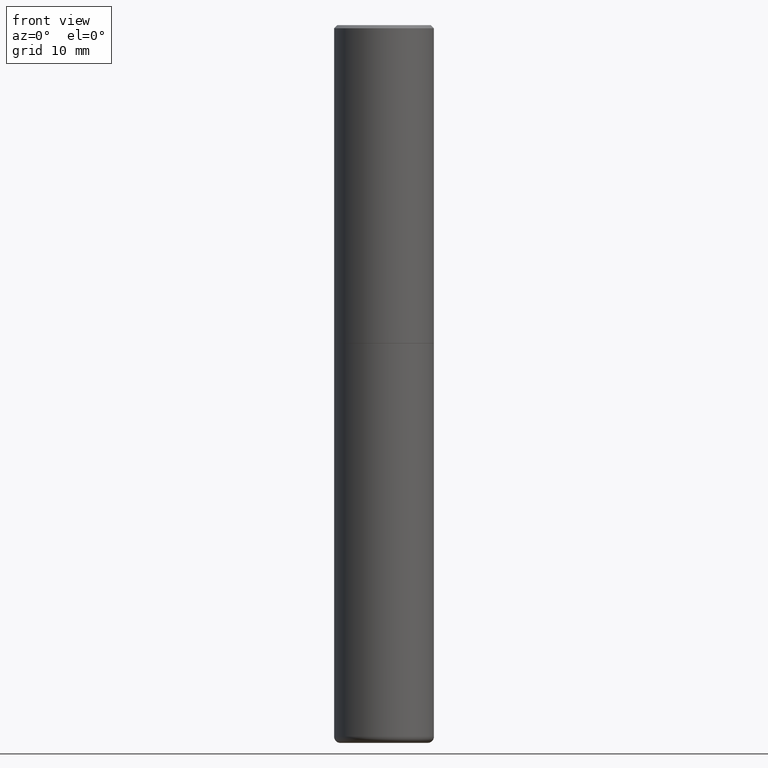
[diagram: clean part render]
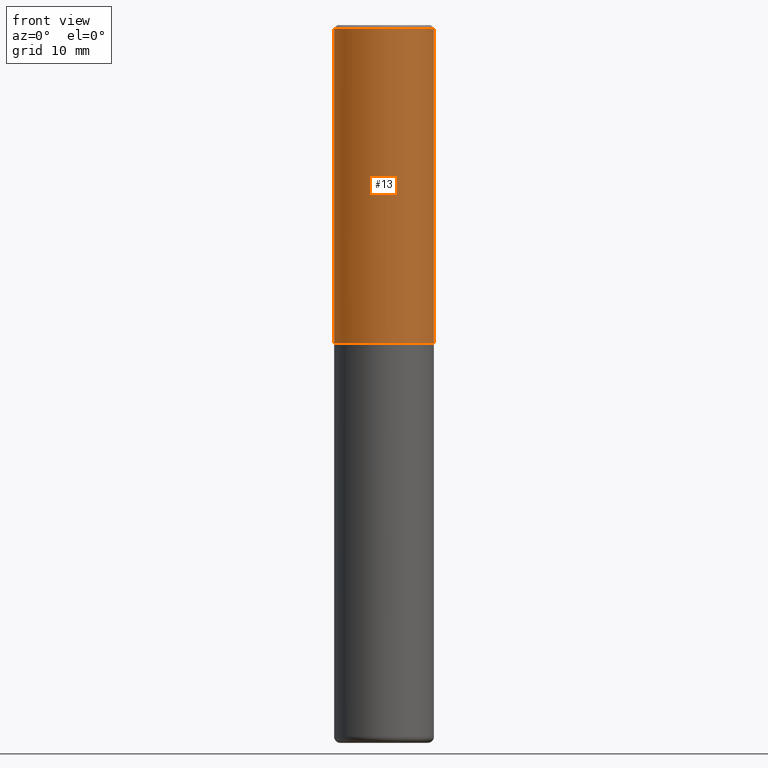
[diagram: same view with one face highlighted and labeled with its STEP entity id]
A machine part, front view. The second image highlights one B-rep face of the part: STEP entity #13.
In plain terms, the highlighted cylindrical surface (partial cylindrical patch) has radius 7.9997 mm, axis along (-0, 0, 1).
Its self-contained STEP definition (entity closure, byte-faithful):
#4 = DIRECTION ( 'NONE',  ( 1.000000000000000000, -6.982962677686265922E-15, 0.000000000000000000 ) ) ;
#8 = EDGE_CURVE ( 'NONE', #146, #207, #82, .T. ) ;
#13 = ADVANCED_FACE ( 'NONE', ( #186 ), #164, .T. ) ;
#34 = DIRECTION ( 'NONE',  ( -2.445468806185136597E-29, 3.491481338843145583E-15, 1.000000000000000000 ) ) ;
#36 = EDGE_LOOP ( 'NONE', ( #43, #205, #403, #285 ) ) ;
#40 = EDGE_CURVE ( 'NONE', #53, #216, #125, .T. ) ;
#43 = ORIENTED_EDGE ( 'NONE', *, *, #40, .F. ) ;
#53 = VERTEX_POINT ( 'NONE', #55 ) ;
#55 = CARTESIAN_POINT ( 'NONE',  ( -0.3149500000000002853, -1.300587416574145677E-15, -2.006899999999999906 ) ) ;
#62 = CARTESIAN_POINT ( 'NONE',  ( 4.890937612370289799E-31, -6.982962677686315028E-17, -0.02000000000000006981 ) ) ;
#82 = LINE ( 'NONE', #220, #211 ) ;
#117 = AXIS2_PLACEMENT_3D ( 'NONE', #253, #183, #389 ) ;
#125 = LINE ( 'NONE', #128, #404 ) ;
#128 = CARTESIAN_POINT ( 'NONE',  ( -0.3149500000000000632, 2.237854346276435985E-15, -1.549218606675782956E-29 ) ) ;
#138 = EDGE_CURVE ( 'NONE', #53, #146, #314, .T. ) ;
#146 = VERTEX_POINT ( 'NONE', #412 ) ;
#163 = EDGE_CURVE ( 'NONE', #216, #207, #237, .T. ) ;
#164 = CYLINDRICAL_SURFACE ( 'NONE', #117, 0.3149500000000000632 ) ;
#183 = DIRECTION ( 'NONE',  ( -2.445468806185136597E-29, 3.491481338843145583E-15, 1.000000000000000000 ) ) ;
#186 = FACE_OUTER_BOUND ( 'NONE', #36, .T. ) ;
#187 = AXIS2_PLACEMENT_3D ( 'NONE', #350, #257, #349 ) ;
#190 = DIRECTION ( 'NONE',  ( -2.445468806185136877E-29, 3.491481338843145188E-15, 1.000000000000000000 ) ) ;
#193 = CARTESIAN_POINT ( 'NONE',  ( -0.3149499999999998967, 2.129454468560425784E-15, -0.02000000000000006981 ) ) ;
#205 = ORIENTED_EDGE ( 'NONE', *, *, #138, .T. ) ;
#207 = VERTEX_POINT ( 'NONE', #319 ) ;
#211 = VECTOR ( 'NONE', #190, 39.37007874015748143 ) ;
#216 = VERTEX_POINT ( 'NONE', #193 ) ;
#220 = CARTESIAN_POINT ( 'NONE',  ( 0.3149500000000000632, -2.199284095337290265E-15, 1.535751875536930410E-29 ) ) ;
#227 = DIRECTION ( 'NONE',  ( -2.445468806185136877E-29, 3.491481338843145188E-15, 1.000000000000000000 ) ) ;
#237 = CIRCLE ( 'NONE', #297, 0.3149499999999998967 ) ;
#253 = CARTESIAN_POINT ( 'NONE',  ( 0.000000000000000000, 0.000000000000000000, 0.000000000000000000 ) ) ;
#257 = DIRECTION ( 'NONE',  ( -2.445468806185136597E-29, 3.491481338843145583E-15, 1.000000000000000000 ) ) ;
#285 = ORIENTED_EDGE ( 'NONE', *, *, #163, .F. ) ;
#297 = AXIS2_PLACEMENT_3D ( 'NONE', #62, #34, #4 ) ;
#314 = CIRCLE ( 'NONE', #187, 0.3149500000000002853 ) ;
#319 = CARTESIAN_POINT ( 'NONE',  ( 0.3149499999999998967, -2.230543471175006266E-15, -0.02000000000000006981 ) ) ;
#349 = DIRECTION ( 'NONE',  ( 1.000000000000000000, -6.982962677686267499E-15, 0.000000000000000000 ) ) ;
#350 = CARTESIAN_POINT ( 'NONE',  ( 4.907811347132950267E-29, -7.007053898924307914E-15, -2.006899999999999906 ) ) ;
#389 = DIRECTION ( 'NONE',  ( 1.000000000000000000, -6.982962677686266711E-15, 4.876176775795936353E-29 ) ) ;
#403 = ORIENTED_EDGE ( 'NONE', *, *, #8, .T. ) ;
#404 = VECTOR ( 'NONE', #227, 39.37007874015748143 ) ;
#412 = CARTESIAN_POINT ( 'NONE',  ( 0.3149500000000002853, -9.206337994261599363E-15, -2.006899999999999906 ) ) ;